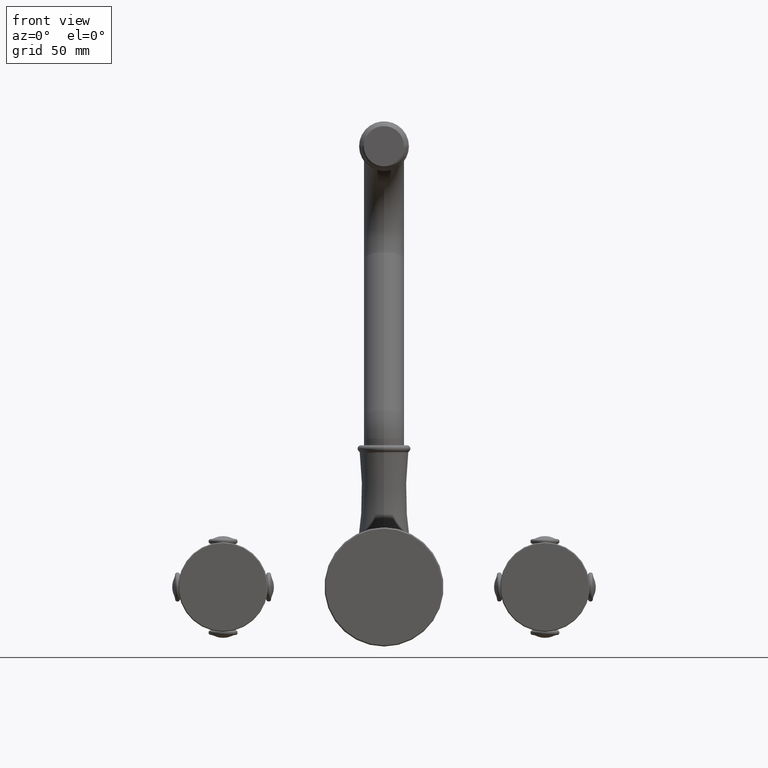
[diagram: clean part render]
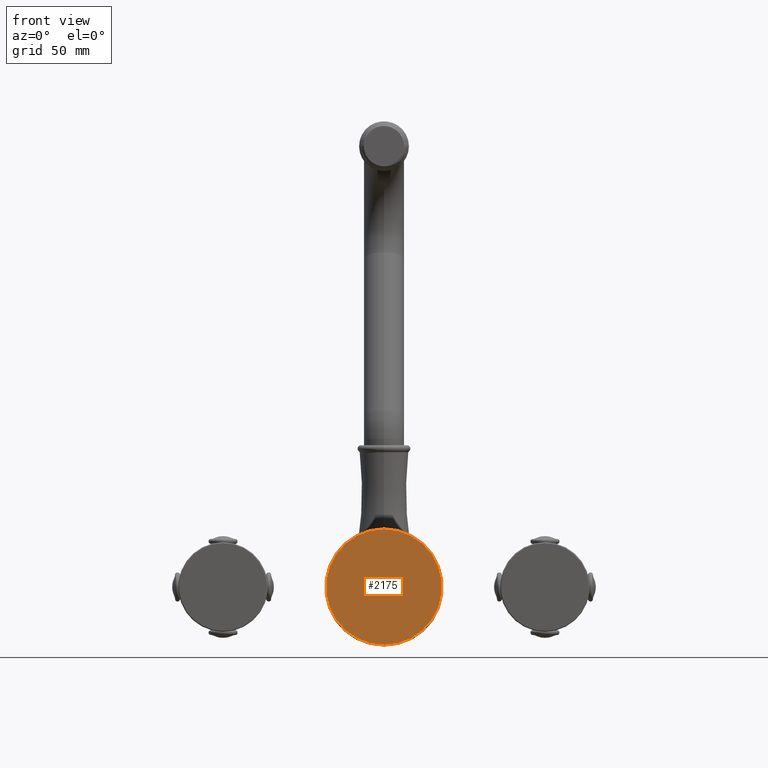
[diagram: same view with one face highlighted and labeled with its STEP entity id]
A machine part, front view. The second image highlights one B-rep face of the part: STEP entity #2175.
In plain terms, the highlighted planar face has unit normal (0, -1, 0).
Its self-contained STEP definition (entity closure, byte-faithful):
#620=CARTESIAN_POINT('',(0.E0,0.E0,0.E0));
#621=DIRECTION('',(0.E0,1.E0,0.E0));
#622=DIRECTION('',(0.E0,0.E0,-1.E0));
#623=AXIS2_PLACEMENT_3D('',#620,#621,#622);
#625=CARTESIAN_POINT('',(0.E0,0.E0,0.E0));
#626=DIRECTION('',(0.E0,1.E0,0.E0));
#627=DIRECTION('',(0.E0,0.E0,1.E0));
#628=AXIS2_PLACEMENT_3D('',#625,#626,#627);
#1067=CARTESIAN_POINT('',(0.E0,0.E0,-1.440537691655E0));
#1068=CARTESIAN_POINT('',(0.E0,0.E0,1.440537691655E0));
#1069=VERTEX_POINT('',#1067);
#1070=VERTEX_POINT('',#1068);
#2166=CARTESIAN_POINT('',(0.E0,0.E0,0.E0));
#2167=DIRECTION('',(0.E0,-1.E0,0.E0));
#2168=DIRECTION('',(0.E0,0.E0,1.E0));
#2169=AXIS2_PLACEMENT_3D('',#2166,#2167,#2168);
#2170=PLANE('',#2169);
#2171=ORIENTED_EDGE('',*,*,#2160,.T.);
#2172=ORIENTED_EDGE('',*,*,#2146,.T.);
#2173=EDGE_LOOP('',(#2171,#2172));
#2174=FACE_OUTER_BOUND('',#2173,.F.);
#2175=ADVANCED_FACE('',(#2174),#2170,.T.);
#624=CIRCLE('',#623,1.440537691655E0);
#629=CIRCLE('',#628,1.440537691655E0);
#2146=EDGE_CURVE('',#1070,#1069,#629,.T.);
#2160=EDGE_CURVE('',#1069,#1070,#624,.T.);